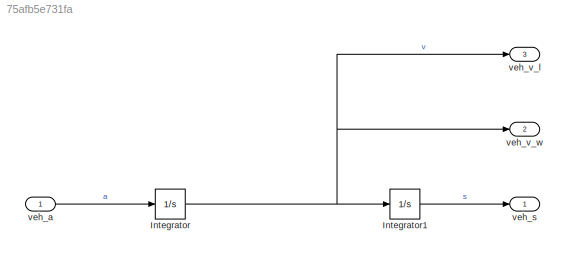
MODEL slx_75afb5e731fa
KIND model
CONFIG AbsTol = auto
CONFIG EnableMultiTasking = off
CONFIG FixedStep = 0.001
CONFIG MaxStep = auto
CONFIG MinStep = auto
CONFIG RelTol = 1e-3
CONFIG SampleTimeConstraint = Unconstrained
CONFIG Solver = ode4
CONFIG SolverName = ode4
CONFIG StartTime = 0.0
CONFIG StopTime = inf
BLOCK [Integrator] Integrator
  Ports = [1, 1]
BLOCK [Integrator] Integrator1
  Ports = [1, 1]
BLOCK [Inport] veh_a
  IconDisplay = Port number
BLOCK [Outport] veh_s
  IconDisplay = Port number
BLOCK [Outport] veh_v_l
  IconDisplay = Port number
  Port = 3
BLOCK [Outport] veh_v_w
  IconDisplay = Port number
  Port = 2
LINE Integrator1:1 -> veh_s:1
NET Integrator:1 -> Integrator1:1, veh_v_l:1, veh_v_w:1
LINE veh_a:1 -> Integrator:1
note: NET lines group one-source signal fan-out (src -> all destinations, sorted); 1:1 wires keep LINE
